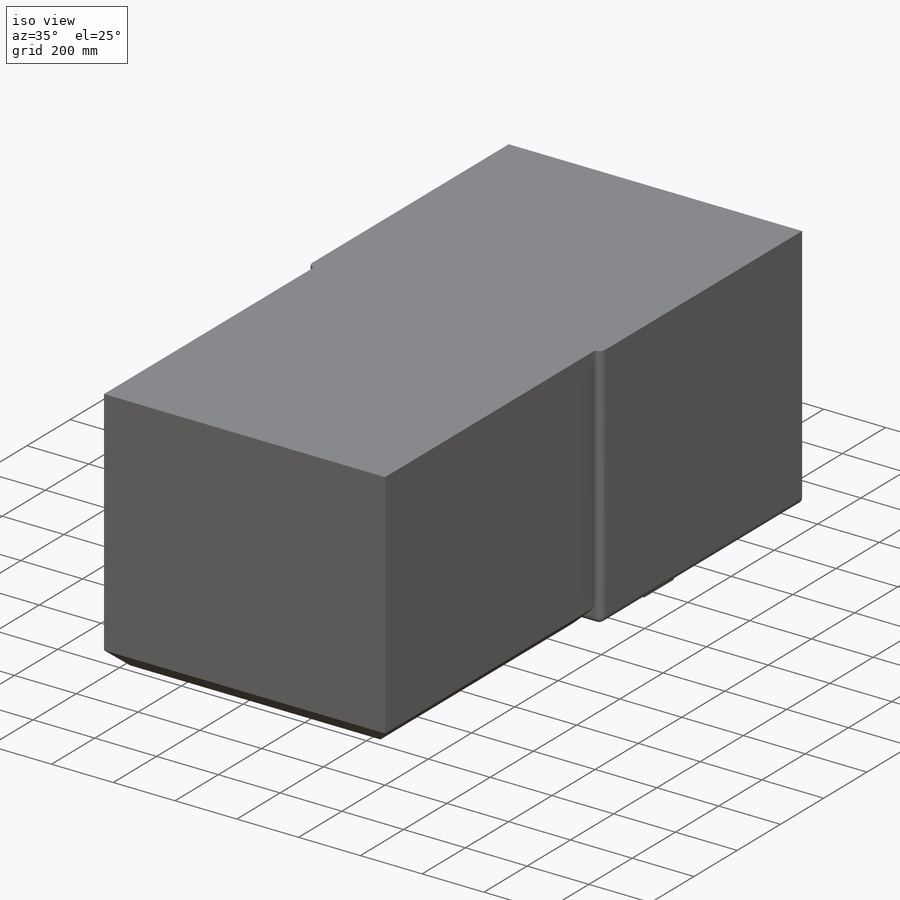
[diagram: iso view]
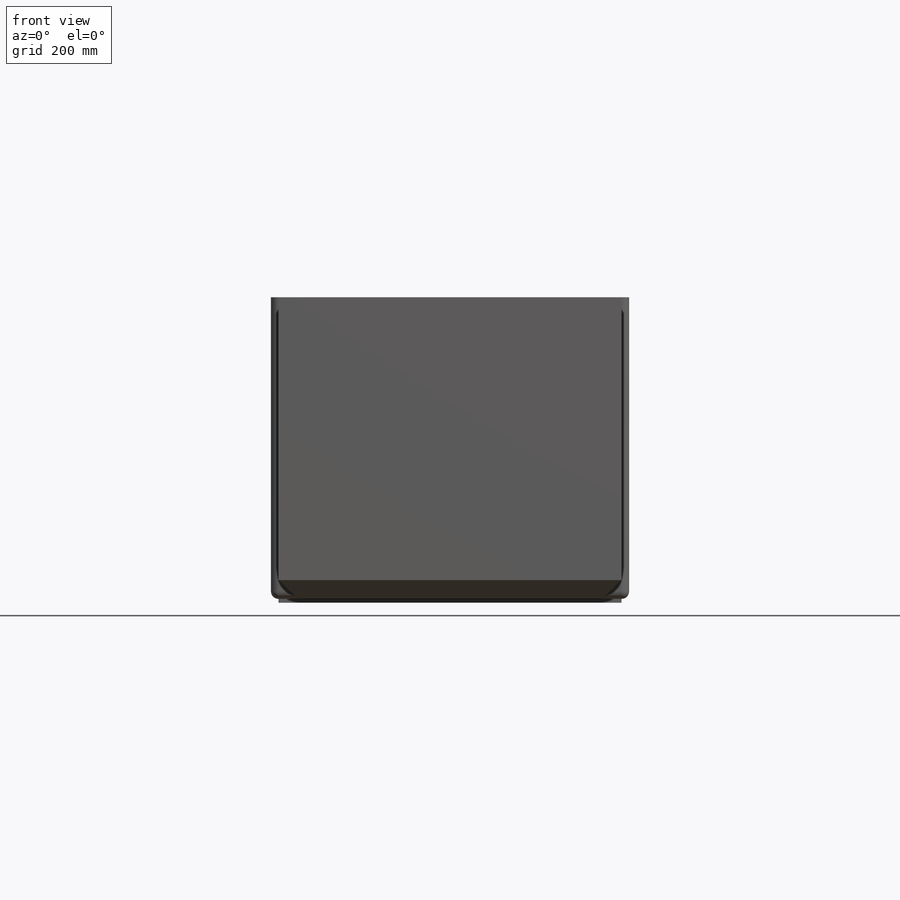
[diagram: front view]
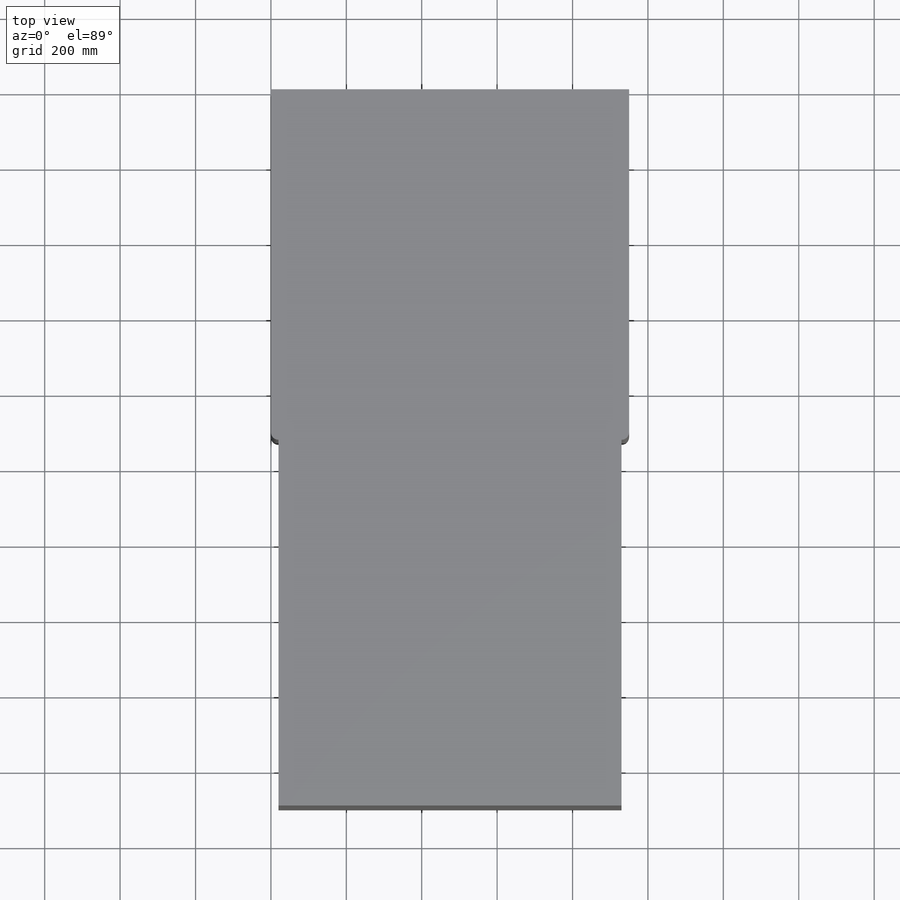
[diagram: top view]
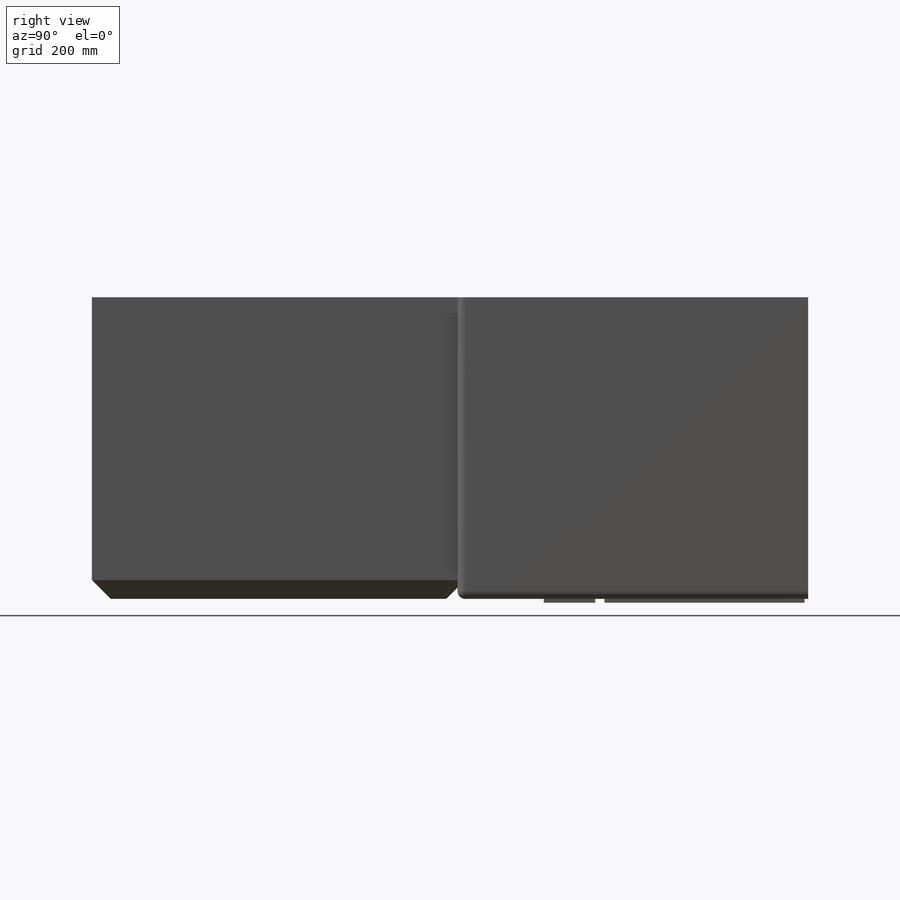
[diagram: right view]
SOLIDWORKS PART (.sldprt)
format: sldprt  version: not decoded by parser v0  size: 255,488 bytes
history: native  units: mm
features: sketch x5, extrude x4, material x1, fillet x1, cut_extrude x1, chamfer x1 (+12 scaffold rows collapsed)
feature tree (25):
  scaffold x12  (default folders/planes/origin — collapsed)
  material  "Material <not specified>"
  sketch  "Sketch1"  dims[c1.D1=~661.816392mm c1.D2=~866.242047mm c2.D1=950.0mm c2.D2=800.0mm]
  extrude  "Boss-Extrude1"  Depth=930mm
  fillet  "Fillet1"  Radius=20mm
  sketch  "Sketch2"  dims[c1.D1=~828.966103mm c1.D2=~901.718057mm c2.D1=1900.0mm c2.D2=910.0mm]
  extrude  "Boss-Extrude2"  [1 undecoded]
  sketch  "Sketch3"  dims[c1.D1=~847.627655mm c1.D2=~707.584825mm c2.D1=100.0mm c2.D2=100.0mm c2.D3=100.0mm c2.D4=100.0mm]
  cut_extrude  "Cut-Extrude1"  [1 undecoded]
  chamfer  "Chamfer1"  Distance=50mm Angle=45deg
  sketch  "Sketch4"  dims[D1=~962.42088mm D2=910.0mm]
  extrude  "Boss-Extrude5"  Depth=81.733809mm
  sketch  "Sketch5"  dims[c1.D1=~716.821764mm c1.D2=~262.046349mm c2.D1=~716.821764mm c2.D2=~224.771002mm c3.D1=~716.821764mm c3.D2=~137.672239mm c4.D1=~716.821764mm c4.D2=~209.650196mm c5.D1=~136.605324mm c5.D2=910.0mm c6.D1=4.0]
  extrude  "Boss-Extrude6"  Depth=10mm
decode coverage: 10 of 12 modeling features carry decoded parameters
note: ~ marks probable driven/reference dimensions
note: 2 parameter values undecoded
note: suppression state not decoded; provenance and decode notes live in map.json
